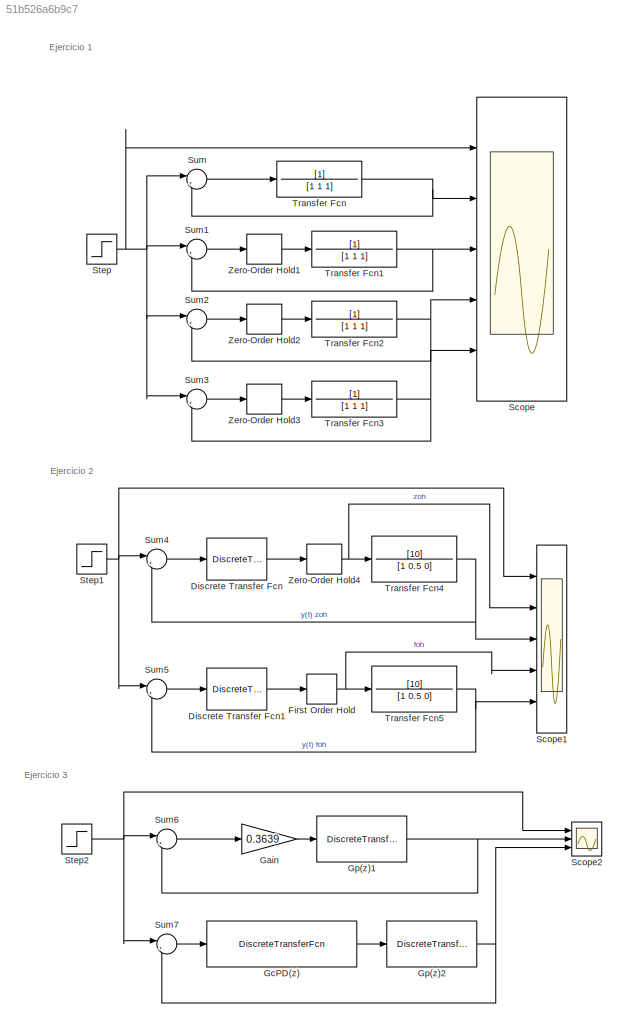
MODEL slx_51b526a6b9c7
KIND model
CONFIG AbsTol = auto
CONFIG EnableMultiTasking = off
CONFIG FixedStep = auto
CONFIG MaxStep = auto
CONFIG MinStep = auto
CONFIG RelTol = 1e-3
CONFIG SampleTimeConstraint = Unconstrained
CONFIG SolverName = VariableStepAuto
CONFIG StartTime = 0.0
CONFIG StopTime = 10.0
BLOCK [DiscreteTransferFcn] Discrete Transfer Fcn
  Denominator = [1 -1.6049 0.6061]
  InputPortMap = u0
  Numerator = [0.842 -1.6049 0.7641]
  Ports = [1, 1]
  SampleTime = 0.1
BLOCK [DiscreteTransferFcn] Discrete Transfer Fcn1
  Denominator = [1 -1.6049 0.6061]
  InputPortMap = u0
  Numerator = [0.842 -1.6049 0.7641]
  Ports = [1, 1]
  SampleTime = 0.1
BLOCK [FirstOrderHold] First Order Hold
  ErrorTolerance = inf
BLOCK [Gain] Gain
  Gain = 0.3639
BLOCK [DiscreteTransferFcn] GcPD(z)
  Denominator = [1 0]
  InputPortMap = u0
  Numerator = [0.3639 -0.308]
  Ports = [1, 1]
BLOCK [DiscreteTransferFcn] Gp(z)1
  Denominator = [1 -2 1]
  InputPortMap = u0
  Numerator = [0.5 0.5]
  Ports = [1, 1]
  SampleTime = 0.1
BLOCK [DiscreteTransferFcn] Gp(z)2
  Denominator = [1 -2 1]
  InputPortMap = u0
  Numerator = [0.5 0.5]
  Ports = [1, 1]
  SampleTime = 0.1
BLOCK [Scope] Scope
  Floating = off
  NumInputPorts = 5
  Ports = [5]
  ScopeSpecificationString = Simulink.scopes.TimeScopeBlockCfg('CurrentConfiguration', extmgr.ConfigurationSet(extmgr.Configuration('Core','General UI',true),extmgr.Configuration('Core','Source UI',true),extmgr.Configuration('Sources','WiredSimulink',true),extmgr.Configuration('Visuals','Time Domain',true),extmgr.Configuration('Tools','Plot Navigation',true),extmgr.Configuration('Tools','Measurements',true)),'Version','2020b'...<+1ch>
BLOCK [Scope] Scope1
  Floating = off
  NumInputPorts = 5
  Ports = [5]
  ScopeSpecificationString = Simulink.scopes.TimeScopeBlockCfg('CurrentConfiguration', extmgr.ConfigurationSet(extmgr.Configuration('Core','General UI',true),extmgr.Configuration('Core','Source UI',true),extmgr.Configuration('Sources','WiredSimulink',true,'DataLoggingVariableName','ScopeData1'),extmgr.Configuration('Visuals','Time Domain',true,'SerializedDisplays',{struct('MinYLimReal','-0.46704','MaxYLimReal','1.61155','YLab...<+1425ch>
BLOCK [Scope] Scope2
  Floating = off
  NumInputPorts = 3
  Ports = [3]
  ScopeSpecificationString = Simulink.scopes.TimeScopeBlockCfg('CurrentConfiguration', extmgr.ConfigurationSet(extmgr.Configuration('Core','General UI',true),extmgr.Configuration('Core','Source UI',true),extmgr.Configuration('Sources','WiredSimulink',true,'DataLoggingVariableName','ScopeData2'),extmgr.Configuration('Visuals','Time Domain',true,'SerializedDisplays',{struct('MinYLimReal','0.9','MaxYLimReal','1.1','YLabelReal','...<+2670ch>
BLOCK [Step] Step
  SampleTime = 0
  Time = 0
BLOCK [Step] Step1
  SampleTime = 0
  Time = 0
BLOCK [Step] Step2
  SampleTime = 0
  Time = 0
BLOCK [Sum] Sum
  Inputs = |+-
  Ports = [2, 1]
BLOCK [Sum] Sum1
  Inputs = |+-
  Ports = [2, 1]
BLOCK [Sum] Sum2
  Inputs = |+-
  Ports = [2, 1]
BLOCK [Sum] Sum3
  Inputs = |+-
  Ports = [2, 1]
BLOCK [Sum] Sum4
  Inputs = |+-
  Ports = [2, 1]
BLOCK [Sum] Sum5
  Inputs = |+-
  Ports = [2, 1]
BLOCK [Sum] Sum6
  Inputs = |+-
  Ports = [2, 1]
BLOCK [Sum] Sum7
  Inputs = |+-
  Ports = [2, 1]
BLOCK [TransferFcn] Transfer Fcn
  Denominator = [1 1 1]
BLOCK [TransferFcn] Transfer Fcn1
  Denominator = [1 1 1]
BLOCK [TransferFcn] Transfer Fcn2
  Denominator = [1 1 1]
BLOCK [TransferFcn] Transfer Fcn3
  Denominator = [1 1 1]
BLOCK [TransferFcn] Transfer Fcn4
  Denominator = [1 0.5 0]
  Numerator = [10]
BLOCK [TransferFcn] Transfer Fcn5
  Denominator = [1 0.5 0]
  Numerator = [10]
BLOCK [ZeroOrderHold] Zero-Order Hold1
  SampleTime = 0.01
BLOCK [ZeroOrderHold] Zero-Order Hold2
  SampleTime = 0.1
BLOCK [ZeroOrderHold] Zero-Order Hold3
BLOCK [ZeroOrderHold] Zero-Order Hold4
  SampleTime = 0.1
ANNOTATION (root): Ejercicio 1
ANNOTATION (root): Ejercicio 2
ANNOTATION (root): Ejercicio 3
LINE Discrete Transfer Fcn1:1 -> First Order Hold:1
LINE Discrete Transfer Fcn:1 -> Zero-Order Hold4:1
NET First Order Hold:1 -> Scope1:4, Transfer Fcn5:1
LINE Gain:1 -> Gp(z)1:1
LINE GcPD(z):1 -> Gp(z)2:1
NET Gp(z)1:1 -> Scope2:2, Sum6:2
NET Gp(z)2:1 -> Scope2:3, Sum7:2
NET Step1:1 -> Scope1:1, Sum4:1, Sum5:1
NET Step2:1 -> Scope2:1, Sum6:1, Sum7:1
NET Step:1 -> Scope:1, Sum1:1, Sum2:1, Sum3:1, Sum:1
LINE Sum1:1 -> Zero-Order Hold1:1
LINE Sum2:1 -> Zero-Order Hold2:1
LINE Sum3:1 -> Zero-Order Hold3:1
LINE Sum4:1 -> Discrete Transfer Fcn:1
LINE Sum5:1 -> Discrete Transfer Fcn1:1
LINE Sum6:1 -> Gain:1
LINE Sum7:1 -> GcPD(z):1
LINE Sum:1 -> Transfer Fcn:1
NET Transfer Fcn1:1 -> Scope:3, Sum1:2
NET Transfer Fcn2:1 -> Scope:4, Sum2:2
NET Transfer Fcn3:1 -> Scope:5, Sum3:2
NET Transfer Fcn4:1 -> Scope1:3, Sum4:2
NET Transfer Fcn5:1 -> Scope1:5, Sum5:2
NET Transfer Fcn:1 -> Scope:2, Sum:2
LINE Zero-Order Hold1:1 -> Transfer Fcn1:1
LINE Zero-Order Hold2:1 -> Transfer Fcn2:1
LINE Zero-Order Hold3:1 -> Transfer Fcn3:1
NET Zero-Order Hold4:1 -> Scope1:2, Transfer Fcn4:1
note: NET lines group one-source signal fan-out (src -> all destinations, sorted); 1:1 wires keep LINE
